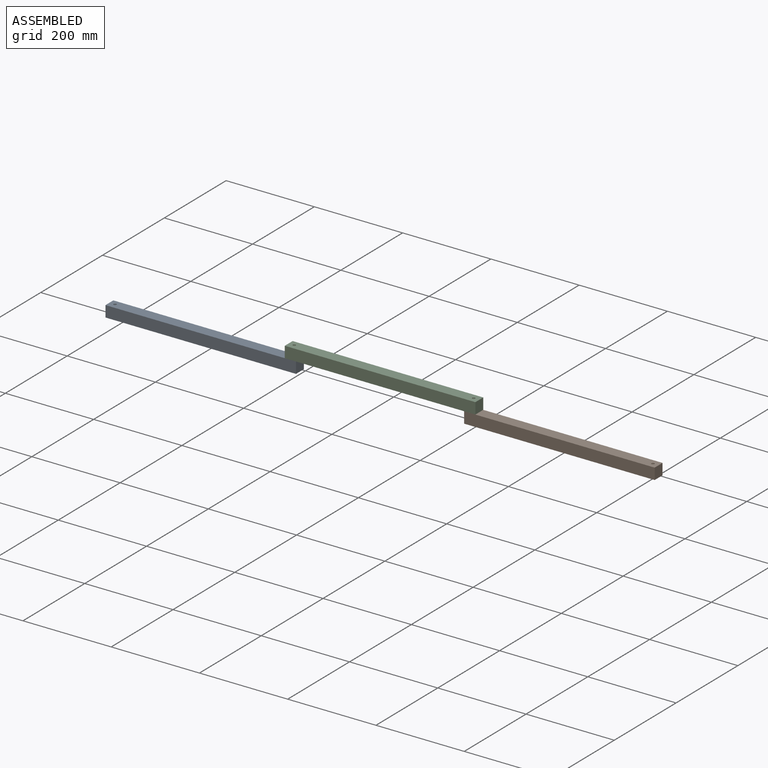
[diagram: assembled view]
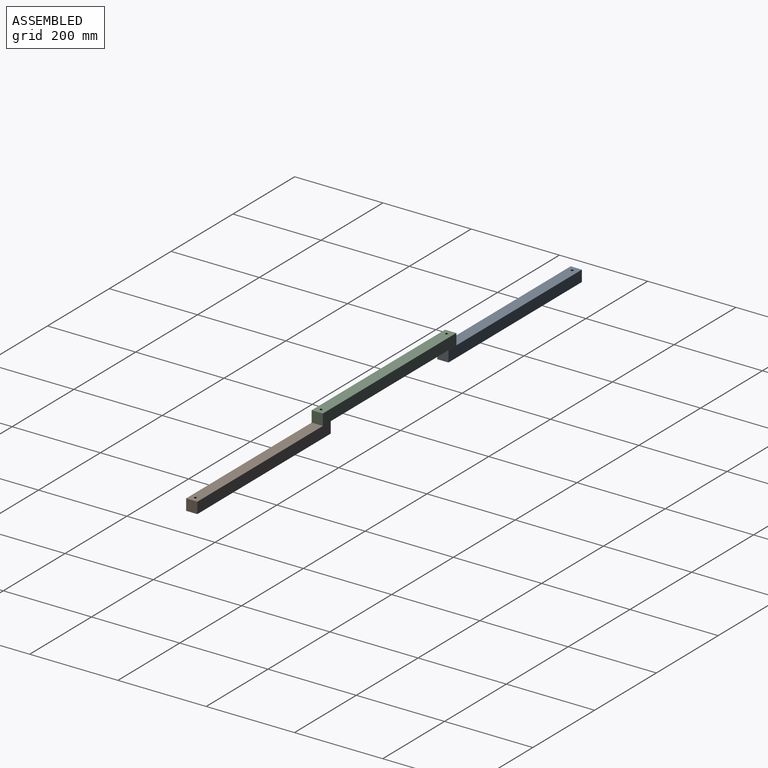
[diagram: assembled view, second angle]
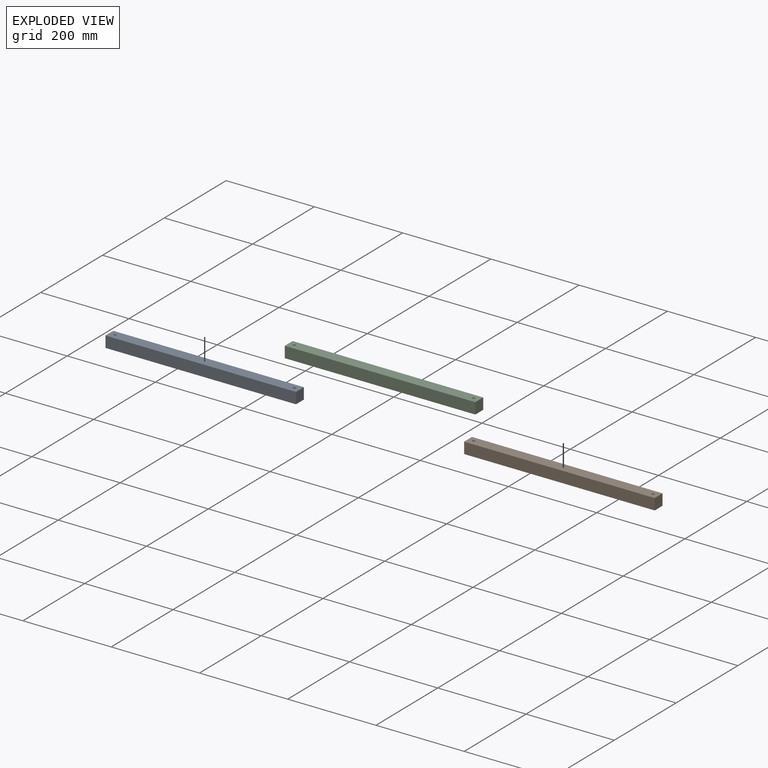
[diagram: exploded view]
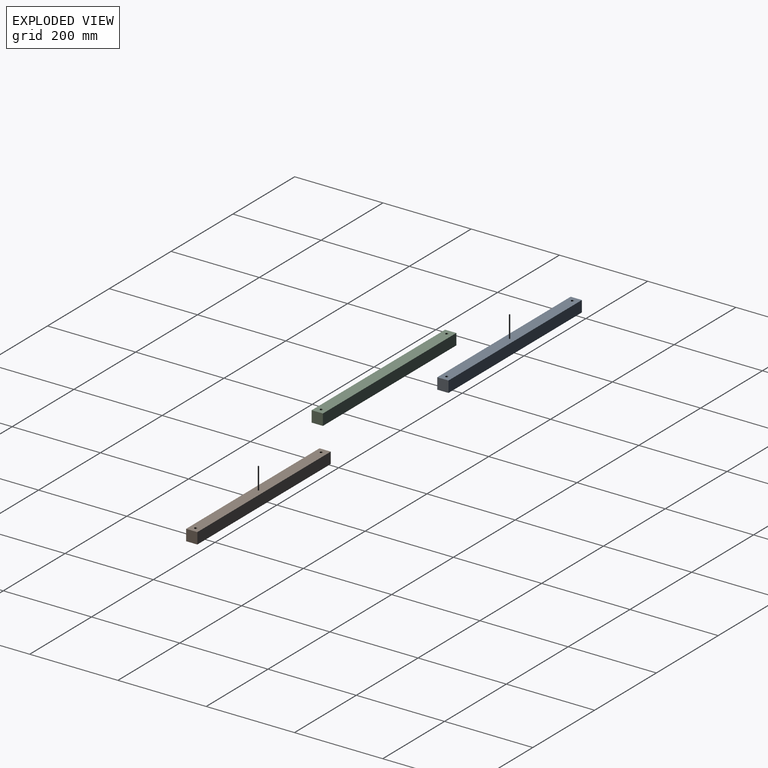
[diagram: exploded view, second angle]
ASSEMBLY  parts=3 mates=2
PART A: 8 faces, bbox 431.8x25.4x25.4 mm
  f0: plane 25.4x25.4mm, normal (1,0,0), area 645.2mm2, adj f1,f3,f4,f5
  f1: plane 431.8x25.4mm, normal (0,1,0), area 10967.7mm2, adj f0,f2,f4,f5
  f2: plane 25.4x25.4mm, normal (-1,0,0), area 645.2mm2, adj f1,f3,f4,f5
  f3: plane 431.8x25.4mm, normal (0,-1,0), area 10967.7mm2, adj f0,f2,f4,f5
  f4: plane 431.8x25.4mm, normal (0,0,1), area 10904.4mm2, adj f0,f1,f2,f3,f6,f7
  f5: plane 431.8x25.4mm, normal (0,0,-1), area 10904.4mm2, adj f0,f1,f2,f3,f6,f7
  f6: cylinder r=3.17mm len=25.4mm, axis (0,0,1), area 506.7mm2, adj f4,f5
  f7: cylinder r=3.17mm len=25.4mm, axis (0,0,1), area 506.7mm2, adj f4,f5
PART B: same geometry as A
PART C: same geometry as A
PLACE A rot(axis=(-1,0,0),180deg) t=(-1015.3,-224.86,34.77)mm
PLACE B t=(-202.5,17.36,9.37)mm
PLACE C rot(axis=(0,1,0),180deg) t=(-609.71,17.36,60.17)mm
MATE revolute C.f6 <-> B.f6  axis (0,0,-1) through (-406.11,-103.75,34.77)mm
MATE revolute A.f7 <-> C.f7  axis (0,0,1) through (-812.51,-103.75,34.77)mm
